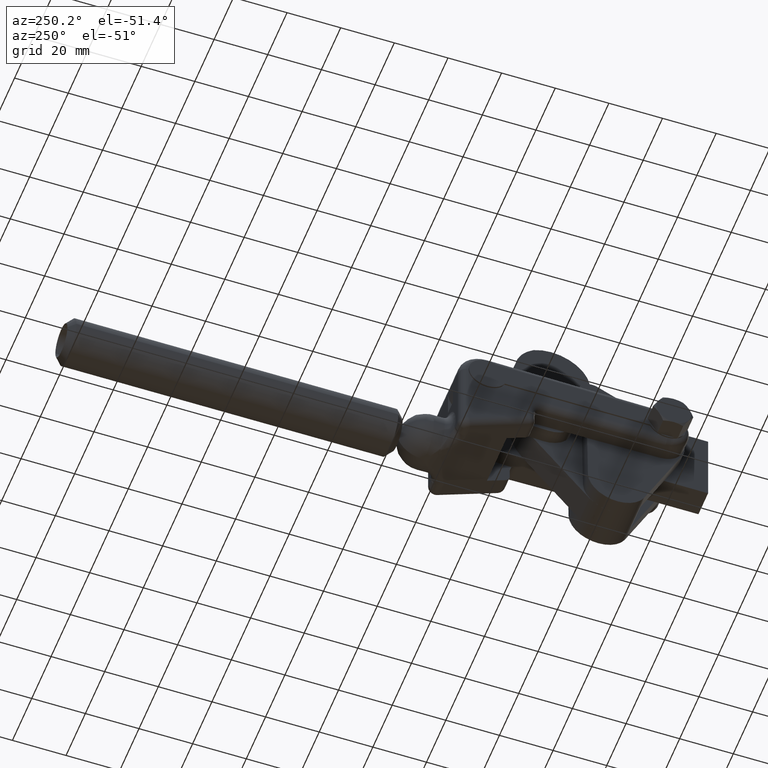
[diagram: clean part render]
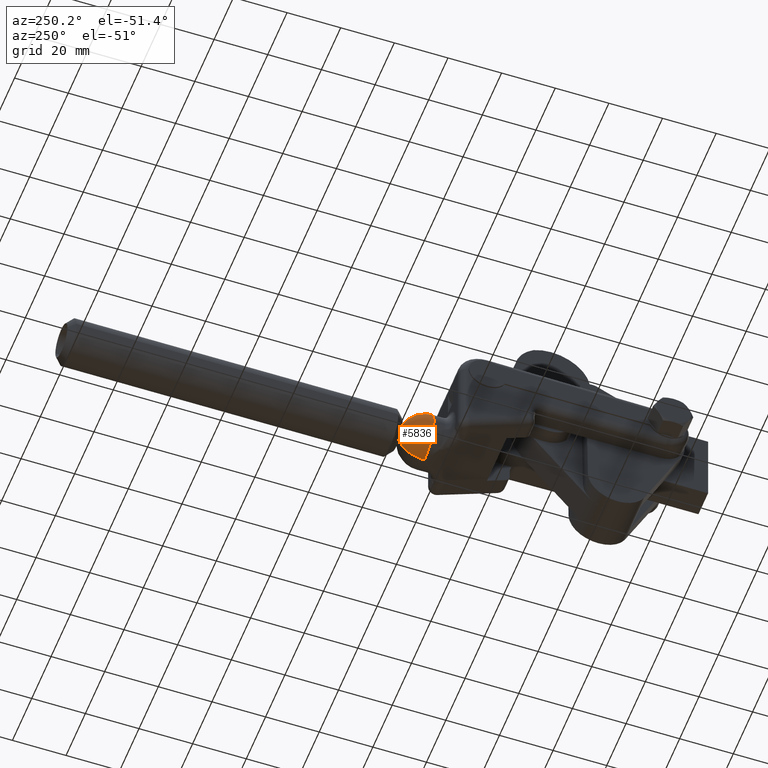
[diagram: same view with one face highlighted and labeled with its STEP entity id]
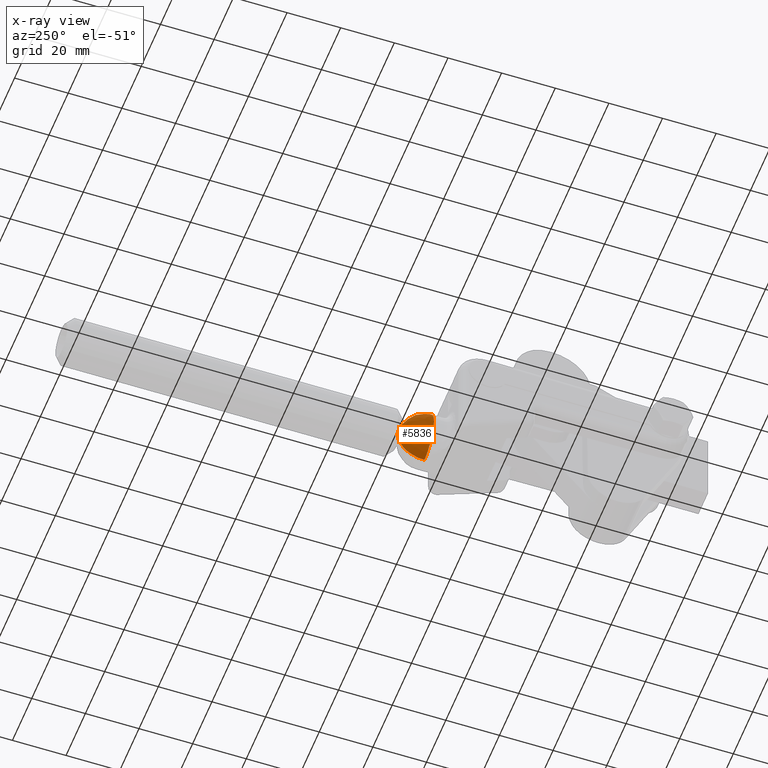
[diagram: x-ray of the same camera — body ghosted, the highlighted face saturated]
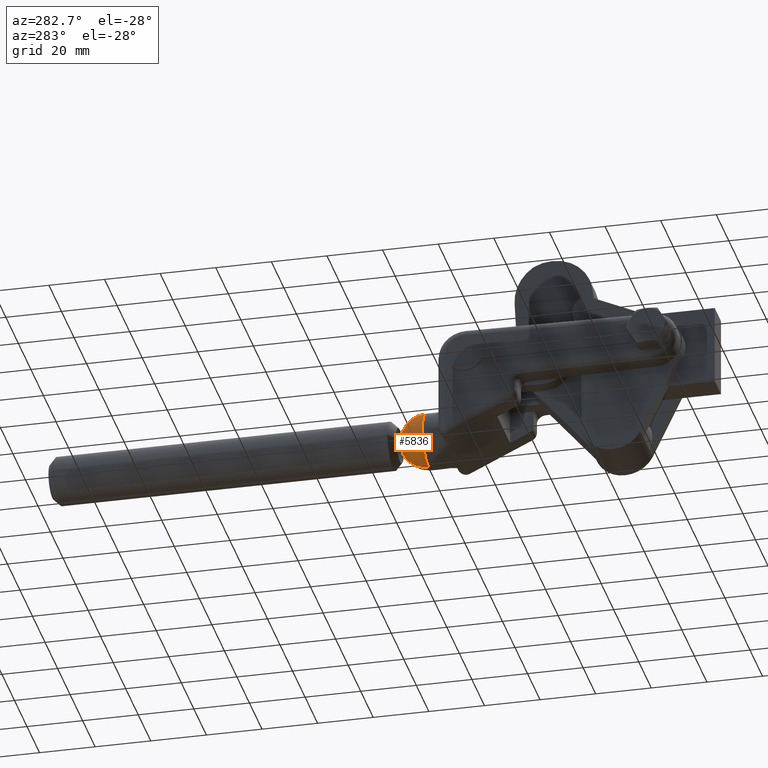
[diagram: same view with one face highlighted and labeled with its STEP entity id]
A machine part, auxiliary view. The second image highlights one B-rep face of the part: STEP entity #5836.
The next image is the same camera in x-ray: the body ghosted, the highlighted face saturated — about 0% of this face is hidden behind the body in this view.
A second angle (auxiliary view) of the same face is appended — the face is thin or edge-on in the first view.
In plain terms, the highlighted spherical surface has radius 10 mm.
Its self-contained STEP definition (entity closure, byte-faithful):
#189 = VERTEX_POINT ( 'NONE', #4695 ) ;
#218 = EDGE_CURVE ( 'NONE', #5999, #189, #5903, .T. ) ;
#377 = CARTESIAN_POINT ( 'NONE',  ( 1.022180303187017400E-016, 104.0000000000000100, -24.00000000000000700 ) ) ;
#1686 = AXIS2_PLACEMENT_3D ( 'NONE', #6432, #4196, #3976 ) ;
#1819 = EDGE_CURVE ( 'NONE', #3704, #5999, #5297, .T. ) ;
#1972 = FACE_OUTER_BOUND ( 'NONE', #6748, .T. ) ;
#2065 = AXIS2_PLACEMENT_3D ( 'NONE', #377, #4918, #6456 ) ;
#2428 = CARTESIAN_POINT ( 'NONE',  ( -1.122428768828651200E-015, 104.0000000000000100, -14.00000000000000900 ) ) ;
#2827 = DIRECTION ( 'NONE',  ( -1.000000000000000000, 0.0000000000000000000, -0.0000000000000000000 ) ) ;
#3640 = DIRECTION ( 'NONE',  ( -1.224646799147353200E-016, 0.0000000000000000000, 1.000000000000000000 ) ) ;
#3704 = VERTEX_POINT ( 'NONE', #6182 ) ;
#3853 = CIRCLE ( 'NONE', #1686, 9.999999999999994700 ) ;
#3976 = DIRECTION ( 'NONE',  ( 0.0000000000000000000, 0.0000000000000000000, -1.000000000000000000 ) ) ;
#4196 = DIRECTION ( 'NONE',  ( 1.000000000000000000, 0.0000000000000000000, 0.0000000000000000000 ) ) ;
#4259 = EDGE_CURVE ( 'NONE', #3704, #189, #3853, .T. ) ;
#4335 = AXIS2_PLACEMENT_3D ( 'NONE', #5055, #2827, #5921 ) ;
#4695 = CARTESIAN_POINT ( 'NONE',  ( 1.022180303187017400E-016, 114.0000000000000000, -24.00000000000000700 ) ) ;
#4811 = SPHERICAL_SURFACE ( 'NONE', #4335, 9.999999999999998200 ) ;
#4821 = CARTESIAN_POINT ( 'NONE',  ( 1.022180303187017400E-016, 104.0000000000000100, -24.00000000000000700 ) ) ;
#4918 = DIRECTION ( 'NONE',  ( -0.0000000000000000000, 1.000000000000000000, -0.0000000000000000000 ) ) ;
#4967 = AXIS2_PLACEMENT_3D ( 'NONE', #4821, #6052, #3640 ) ;
#5055 = CARTESIAN_POINT ( 'NONE',  ( 1.022180303187017400E-016, 104.0000000000000100, -24.00000000000000700 ) ) ;
#5138 = ORIENTED_EDGE ( 'NONE', *, *, #218, .T. ) ;
#5297 = CIRCLE ( 'NONE', #2065, 10.00000000000000000 ) ;
#5836 = ADVANCED_FACE ( 'NONE', ( #1972 ), #4811, .T. ) ;
#5903 = CIRCLE ( 'NONE', #4967, 9.999999999999998200 ) ;
#5921 = DIRECTION ( 'NONE',  ( 0.0000000000000000000, 0.0000000000000000000, -1.000000000000000000 ) ) ;
#5999 = VERTEX_POINT ( 'NONE', #2428 ) ;
#6052 = DIRECTION ( 'NONE',  ( -1.000000000000000000, -0.0000000000000000000, -1.224646799147353200E-016 ) ) ;
#6067 = ORIENTED_EDGE ( 'NONE', *, *, #4259, .F. ) ;
#6182 = CARTESIAN_POINT ( 'NONE',  ( 1.022180303187017400E-016, 104.0000000000000100, -34.00000000000000700 ) ) ;
#6242 = ORIENTED_EDGE ( 'NONE', *, *, #1819, .T. ) ;
#6432 = CARTESIAN_POINT ( 'NONE',  ( 1.022180303187017400E-016, 104.0000000000000100, -24.00000000000000700 ) ) ;
#6456 = DIRECTION ( 'NONE',  ( 0.0000000000000000000, 0.0000000000000000000, 1.000000000000000000 ) ) ;
#6748 = EDGE_LOOP ( 'NONE', ( #6242, #5138, #6067 ) ) ;